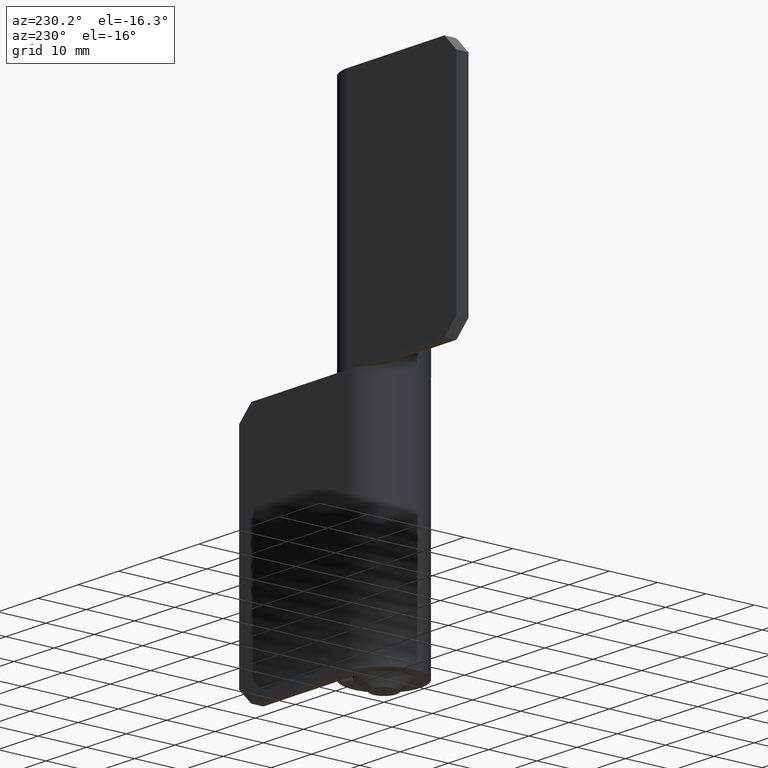
[diagram: clean part render]
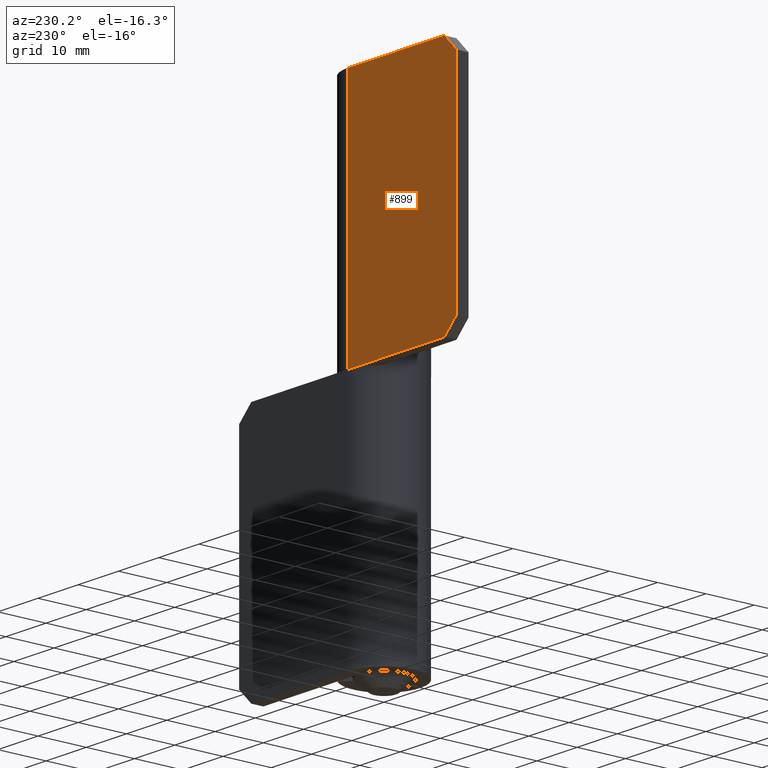
[diagram: same view with one face highlighted and labeled with its STEP entity id]
A machine part, auxiliary view. The second image highlights one B-rep face of the part: STEP entity #899.
In plain terms, the highlighted face is a freeform B-spline surface patch.
Its self-contained STEP definition (entity closure, byte-faithful):
#588=CARTESIAN_POINT('',(-27.0,7.500000000000000,97.0));
#589=VERTEX_POINT('',#588);
#590=CARTESIAN_POINT('',(-24.0,7.500000000000000,100.0));
#591=VERTEX_POINT('',#590);
#592=CARTESIAN_POINT('',(-27.0,7.500000000000000,97.0));
#593=CARTESIAN_POINT('',(-24.0,7.500000000000000,100.0));
#594=QUASI_UNIFORM_CURVE('',1,(#592,#593),.UNSPECIFIED.,.F.,.U.);
#595=EDGE_CURVE('',#589,#591,#594,.T.);
#624=CARTESIAN_POINT('',(-24.0,7.500000000000000,50.0));
#625=VERTEX_POINT('',#624);
#626=CARTESIAN_POINT('',(-27.0,7.500000000000000,53.0));
#627=VERTEX_POINT('',#626);
#628=CARTESIAN_POINT('',(-24.0,7.500000000000000,50.0));
#629=CARTESIAN_POINT('',(-27.0,7.500000000000000,53.0));
#630=QUASI_UNIFORM_CURVE('',1,(#628,#629),.UNSPECIFIED.,.F.,.U.);
#631=EDGE_CURVE('',#625,#627,#630,.T.);
#660=CARTESIAN_POINT('',(0.0,7.500000000000000,100.0));
#661=VERTEX_POINT('',#660);
#662=CARTESIAN_POINT('',(0.0,7.500000000000000,100.0));
#663=CARTESIAN_POINT('',(-24.0,7.500000000000000,100.0));
#664=QUASI_UNIFORM_CURVE('',1,(#662,#663),.UNSPECIFIED.,.F.,.U.);
#665=EDGE_CURVE('',#661,#591,#664,.T.);
#738=CARTESIAN_POINT('',(0.0,7.500000000000000,50.0));
#739=VERTEX_POINT('',#738);
#740=CARTESIAN_POINT('',(0.0,7.500000000000000,50.0));
#741=CARTESIAN_POINT('',(-24.0,7.500000000000000,50.0));
#742=QUASI_UNIFORM_CURVE('',1,(#740,#741),.UNSPECIFIED.,.F.,.U.);
#743=EDGE_CURVE('',#739,#625,#742,.T.);
#871=CARTESIAN_POINT('',(-27.0,7.500000000000000,53.0));
#872=CARTESIAN_POINT('',(-27.0,7.500000000000000,97.0));
#873=QUASI_UNIFORM_CURVE('',1,(#871,#872),.UNSPECIFIED.,.F.,.U.);
#874=EDGE_CURVE('',#627,#589,#873,.T.);
#882=CARTESIAN_POINT('',(-28.348649947668761,7.500000000000000,47.502500096909699));
#883=CARTESIAN_POINT('',(-28.348649947668761,7.500000000000000,102.497501244194790));
#884=CARTESIAN_POINT('',(1.348650671865194,7.500000000000000,47.502500096909699));
#885=CARTESIAN_POINT('',(1.348650671865194,7.500000000000000,102.497501244194790));
#886=B_SPLINE_SURFACE_WITH_KNOTS('',1,1,((#882,#884),(#883,#885)),.UNSPECIFIED.,.F.,.F.,.U.,(2,2),(2,2),(0.0,54.995001147285109),(0.0,29.697300619533959),.UNSPECIFIED.);
#887=ORIENTED_EDGE('',*,*,#743,.T.);
#888=ORIENTED_EDGE('',*,*,#631,.T.);
#889=ORIENTED_EDGE('',*,*,#874,.T.);
#890=ORIENTED_EDGE('',*,*,#595,.T.);
#891=ORIENTED_EDGE('',*,*,#665,.F.);
#892=CARTESIAN_POINT('',(0.0,7.500000000000000,50.0));
#893=CARTESIAN_POINT('',(0.0,7.500000000000000,100.0));
#894=QUASI_UNIFORM_CURVE('',1,(#892,#893),.UNSPECIFIED.,.F.,.U.);
#895=EDGE_CURVE('',#739,#661,#894,.T.);
#896=ORIENTED_EDGE('',*,*,#895,.F.);
#897=EDGE_LOOP('',(#887,#888,#889,#890,#891,#896));
#898=FACE_OUTER_BOUND('',#897,.T.);
#899=ADVANCED_FACE('',(#898),#886,.T.);